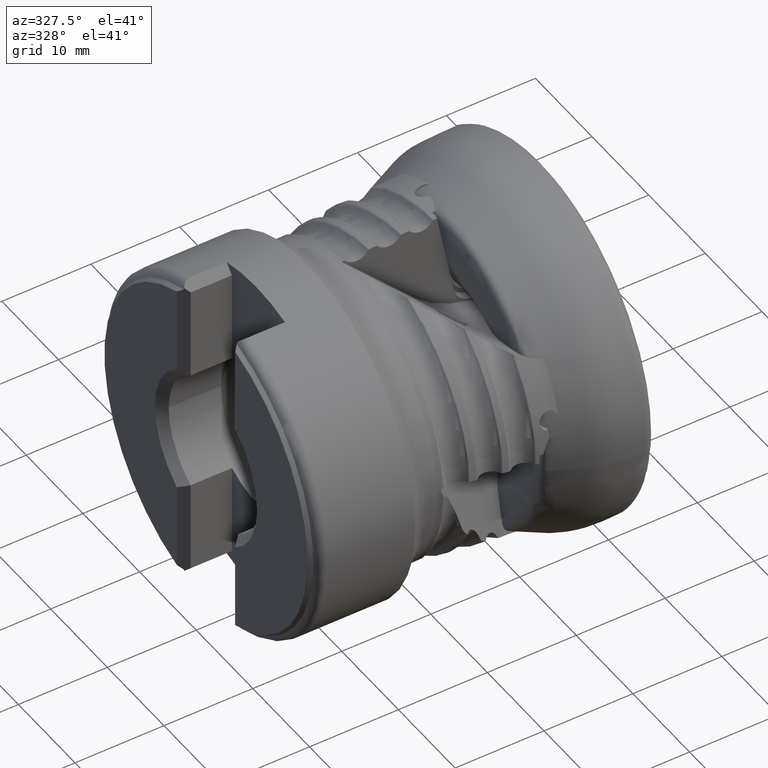
[diagram: clean part render]
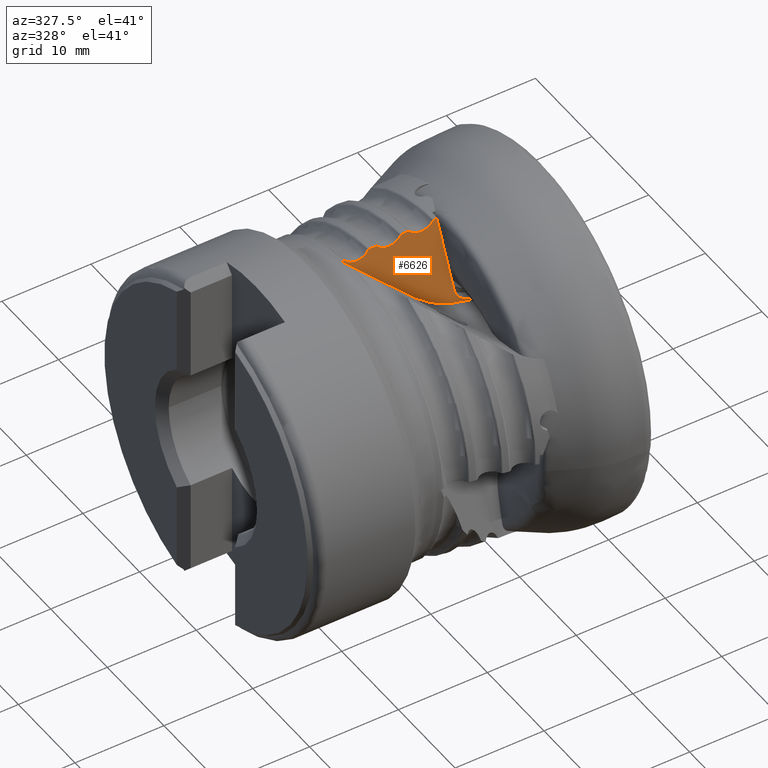
[diagram: same view with one face highlighted and labeled with its STEP entity id]
A machine part, auxiliary view. The second image highlights one B-rep face of the part: STEP entity #6626.
In plain terms, the highlighted planar face has unit normal (0.0698, 0.9976, 0).
Its self-contained STEP definition (entity closure, byte-faithful):
#18 = CARTESIAN_POINT ( 'NONE',  ( -22.93237804649524100, 0.9018787584175045300, 16.66945056114154500 ) ) ;
#32 = LINE ( 'NONE', #754, #6021 ) ;
#52 = VERTEX_POINT ( 'NONE', #9715 ) ;
#74 = CARTESIAN_POINT ( 'NONE',  ( -18.02193226408852300, 0.5585069396324143800, 16.48614713267451000 ) ) ;
#86 = LINE ( 'NONE', #3481, #2151 ) ;
#131 = CARTESIAN_POINT ( 'NONE',  ( -14.66626448247665200, 0.3238557897227878300, 16.88784947896225900 ) ) ;
#148 = CARTESIAN_POINT ( 'NONE',  ( -19.21049323735086700, 0.6416192192931060600, 17.01478553354292300 ) ) ;
#171 = CARTESIAN_POINT ( 'NONE',  ( -21.62066439760930000, 0.8101548047681437200, 16.08215080198396100 ) ) ;
#320 = DIRECTION ( 'NONE',  ( 0.9975640502598253100, -0.06975647374411164700, 0.0000000000000000000 ) ) ;
#423 = VERTEX_POINT ( 'NONE', #6162 ) ;
#436 = B_SPLINE_CURVE_WITH_KNOTS ( 'NONE', 3,
 ( #6314, #18, #4735, #7087 ),
 .UNSPECIFIED., .F., .F.,
 ( 4, 4 ),
 ( 2.018555436729897700E-007, 0.0002103721261003372400 ),
 .UNSPECIFIED. ) ;
#515 = DIRECTION ( 'NONE',  ( -0.1857083024379770900, 0.01298598954091932500, 0.9825191043848704500 ) ) ;
#614 = CARTESIAN_POINT ( 'NONE',  ( -11.67285360609061900, 0.1145361103001607300, 11.78192628055972300 ) ) ;
#754 = CARTESIAN_POINT ( 'NONE',  ( -14.46955968314606400, 0.3101008502115442100, 26.57834148646551500 ) ) ;
#857 = CARTESIAN_POINT ( 'NONE',  ( -17.65869335054573600, 0.5331068004345475000, 16.54335060354373300 ) ) ;
#888 = CARTESIAN_POINT ( 'NONE',  ( -22.68822593246434100, 0.8848059794540584800, 16.60915098782870600 ) ) ;
#907 = CARTESIAN_POINT ( 'NONE',  ( -14.30106816791181700, 0.2983187757117538600, 16.91464098894265400 ) ) ;
#936 = ORIENTED_EDGE ( 'NONE', *, *, #3014, .T. ) ;
#949 = CARTESIAN_POINT ( 'NONE',  ( -21.25529285941197000, 0.7846055379271124100, 16.11006186231635700 ) ) ;
#966 = LINE ( 'NONE', #5211, #6951 ) ;
#982 = CARTESIAN_POINT ( 'NONE',  ( -16.58359652930644400, 0.4579287071946904800, 17.40739725104578600 ) ) ;
#997 = CARTESIAN_POINT ( 'NONE',  ( -16.64893537373561100, 0.4624976442816942100, 17.39986879379563000 ) ) ;
#1023 = B_SPLINE_CURVE_WITH_KNOTS ( 'NONE', 3,
 ( #1597, #6288, #7869, #3173 ),
 .UNSPECIFIED., .F., .F.,
 ( 4, 4 ),
 ( 0.001804902456439107200, 0.002095584730264280600 ),
 .UNSPECIFIED. ) ;
#1097 = CARTESIAN_POINT ( 'NONE',  ( -20.21619411675994700, 0.7119446755589550200, 16.89789840284870700 ) ) ;
#1263 = B_SPLINE_CURVE_WITH_KNOTS ( 'NONE', 3,
 ( #8747, #4818, #7973, #3279 ),
 .UNSPECIFIED., .F., .F.,
 ( 4, 4 ),
 ( 2.018285900375869800E-007, 0.0006824885344810897900 ),
 .UNSPECIFIED. ) ;
#1285 = EDGE_CURVE ( 'NONE', #52, #3568, #966, .T. ) ;
#1387 = DIRECTION ( 'NONE',  ( -0.06975647374411164700, -0.9975640502598253100, -7.211950221047702700E-015 ) ) ;
#1544 = DIRECTION ( 'NONE',  ( 0.1857083024379774500, -0.01298598954091934700, -0.9825191043848704500 ) ) ;
#1597 = CARTESIAN_POINT ( 'NONE',  ( -12.81775168596530500, 0.1945951830259850500, 17.83919039467289400 ) ) ;
#1649 = CARTESIAN_POINT ( 'NONE',  ( -17.32041397203214600, 0.5094520019488635300, 16.68650127885360500 ) ) ;
#1697 = CARTESIAN_POINT ( 'NONE',  ( -13.95356570053498400, 0.2740190360255925200, 17.02866351302884600 ) ) ;
#1721 = CARTESIAN_POINT ( 'NONE',  ( -20.06132922441992200, 0.7011154673556432300, 17.00479521675551500 ) ) ;
#1725 = CARTESIAN_POINT ( 'NONE',  ( -19.31997241798640300, 0.6492747493691345400, 17.09094270997383800 ) ) ;
#1748 = CARTESIAN_POINT ( 'NONE',  ( -20.90806824766631800, 0.7603252277994194700, 16.22516396195757300 ) ) ;
#1764 = CARTESIAN_POINT ( 'NONE',  ( -22.73093576595474700, 0.8877925419486799600, 16.65917420842225400 ) ) ;
#1979 = EDGE_CURVE ( 'NONE', #3306, #8791, #10001, .T. ) ;
#2151 = VECTOR ( 'NONE', #6621, 1000.000000000000000 ) ;
#2207 = LINE ( 'NONE', #5302, #10120 ) ;
#2209 = CARTESIAN_POINT ( 'NONE',  ( -9.155259177039454200, -0.06151124189005347700, 6.086464551588067100 ) ) ;
#2219 = VERTEX_POINT ( 'NONE', #3602 ) ;
#2221 = LINE ( 'NONE', #2952, #8234 ) ;
#2347 = EDGE_CURVE ( 'NONE', #9523, #6978, #4532, .T. ) ;
#2425 = CARTESIAN_POINT ( 'NONE',  ( -16.85243464402838900, 0.4767276994860983300, 17.08155489725415400 ) ) ;
#2440 = CARTESIAN_POINT ( 'NONE',  ( -15.65263949394823200, 0.3928298496557220400, 17.32259661811399800 ) ) ;
#2479 = CARTESIAN_POINT ( 'NONE',  ( -13.54197089893089500, 0.2452375237369006600, 17.29301313499611200 ) ) ;
#2515 = CARTESIAN_POINT ( 'NONE',  ( -20.49704341607592900, 0.7315835716966887500, 16.49061774927226100 ) ) ;
#2528 = CARTESIAN_POINT ( 'NONE',  ( -16.58359652930644400, 0.4579287071946904800, 17.40739725104578600 ) ) ;
#2569 = CARTESIAN_POINT ( 'NONE',  ( -16.73846142164647300, 0.4687579153980022700, 17.30071710437252000 ) ) ;
#2570 = EDGE_CURVE ( 'NONE', #5220, #8033, #436, .T. ) ;
#2758 = CARTESIAN_POINT ( 'NONE',  ( -15.73276054223739500, 0.3984324591321535800, 17.41649872880522300 ) ) ;
#2918 = CARTESIAN_POINT ( 'NONE',  ( -13.23032516703002100, 0.2234451312492715700, 17.75822243192281000 ) ) ;
#2952 = CARTESIAN_POINT ( 'NONE',  ( -9.155259177039454200, -0.06151124189000996300, -4.742926913714724100E-014 ) ) ;
#2974 = EDGE_CURVE ( 'NONE', #7510, #423, #6920, .T. ) ;
#2983 = ORIENTED_EDGE ( 'NONE', *, *, #5364, .T. ) ;
#3014 = EDGE_CURVE ( 'NONE', #5539, #6646, #3307, .T. ) ;
#3105 = VERTEX_POINT ( 'NONE', #8857 ) ;
#3173 = CARTESIAN_POINT ( 'NONE',  ( -13.10586383419297500, 0.2147419470337380800, 17.80630137759338200 ) ) ;
#3191 = CARTESIAN_POINT ( 'NONE',  ( -18.84172679504961000, 0.6158325576312356800, 16.69715891243101100 ) ) ;
#3239 = CARTESIAN_POINT ( 'NONE',  ( -15.56276373482772400, 0.3865451243494240600, 17.24043365181301000 ) ) ;
#3272 = CARTESIAN_POINT ( 'NONE',  ( -13.26072872653300100, 0.2255711552370497100, 17.69980579611261000 ) ) ;
#3279 = CARTESIAN_POINT ( 'NONE',  ( -20.06132922441992200, 0.7011154673556432300, 17.00479521675551500 ) ) ;
#3282 = CARTESIAN_POINT ( 'NONE',  ( -22.51808038382776900, 0.8729082436715275300, 16.43310511388428800 ) ) ;
#3294 = VERTEX_POINT ( 'NONE', #5093 ) ;
#3306 = VERTEX_POINT ( 'NONE', #9839 ) ;
#3307 = B_SPLINE_CURVE_WITH_KNOTS ( 'NONE', 3,
 ( #1721, #7152, #4825, #7187 ),
 .UNSPECIFIED., .F., .F.,
 ( 4, 4 ),
 ( 1.989714420414164500E-007, 0.0001953270459447195100 ),
 .UNSPECIFIED. ) ;
#3318 = CARTESIAN_POINT ( 'NONE',  ( -20.21619411675994700, 0.7119446755589550200, 16.89789840284870700 ) ) ;
#3340 = ORIENTED_EDGE ( 'NONE', *, *, #7273, .F. ) ;
#3424 = DIRECTION ( 'NONE',  ( 0.06975647374411164700, 0.9975640502598252000, 7.210798256239435200E-015 ) ) ;
#3481 = CARTESIAN_POINT ( 'NONE',  ( -15.30473973912517700, 0.3685023289250824500, 8.943021912864589100 ) ) ;
#3493 = ORIENTED_EDGE ( 'NONE', *, *, #5964, .F. ) ;
#3548 = CARTESIAN_POINT ( 'NONE',  ( -15.77546968749421700, 0.4014189735007945300, 17.46655397609754300 ) ) ;
#3568 = VERTEX_POINT ( 'NONE', #7124 ) ;
#3597 = EDGE_CURVE ( 'NONE', #7510, #10212, #5296, .T. ) ;
#3602 = CARTESIAN_POINT ( 'NONE',  ( -9.155259177039454200, -0.06151124189005532200, 6.300962962190353300 ) ) ;
#3699 = CARTESIAN_POINT ( 'NONE',  ( -13.10586383419297500, 0.2147419470337380800, 17.80630137759338200 ) ) ;
#3785 = CARTESIAN_POINT ( 'NONE',  ( -11.90097131837936800, 0.1304876546683540200, 12.51473716040056600 ) ) ;
#3799 = ORIENTED_EDGE ( 'NONE', *, *, #8457, .F. ) ;
#3835 = ORIENTED_EDGE ( 'NONE', *, *, #4311, .F. ) ;
#3838 = CARTESIAN_POINT ( 'NONE',  ( -13.10586383419297500, 0.2147419470337380800, 17.80630137759338200 ) ) ;
#3873 = DIRECTION ( 'NONE',  ( -0.06975647374411164700, -0.9975640502598252000, -7.210798256239436800E-015 ) ) ;
#3913 = B_SPLINE_CURVE_WITH_KNOTS ( 'NONE', 3,
 ( #7204, #1764, #8865, #4165 ),
 .UNSPECIFIED., .F., .F.,
 ( 4, 4 ),
 ( 3.042607488179706800E-007, 0.0001950772398433506300 ),
 .UNSPECIFIED. ) ;
#3948 = CARTESIAN_POINT ( 'NONE',  ( -19.21049323735086700, 0.6416192192931060600, 17.01478553354292300 ) ) ;
#3984 = CARTESIAN_POINT ( 'NONE',  ( -18.50587967924333600, 0.5923478395224861500, 16.54919504039738200 ) ) ;
#4035 = CARTESIAN_POINT ( 'NONE',  ( -15.25482400604464000, 0.3650118808448789600, 17.03946652622331500 ) ) ;
#4079 = CARTESIAN_POINT ( 'NONE',  ( -22.20976862421985800, 0.8513489852374582800, 16.23244539084077000 ) ) ;
#4133 = EDGE_CURVE ( 'NONE', #7301, #9367, #6333, .T. ) ;
#4165 = CARTESIAN_POINT ( 'NONE',  ( -22.86296528221823400, 0.8970249451034273400, 16.67759045399673600 ) ) ;
#4200 = EDGE_CURVE ( 'NONE', #9367, #8033, #86, .T. ) ;
#4211 = ORIENTED_EDGE ( 'NONE', *, *, #4200, .F. ) ;
#4311 = EDGE_CURVE ( 'NONE', #52, #2219, #5835, .T. ) ;
#4336 = CARTESIAN_POINT ( 'NONE',  ( -15.90749989199128800, 0.4106514247815223900, 17.48522877374682900 ) ) ;
#4520 = DIRECTION ( 'NONE',  ( 1.032266439778977500E-046, 7.228406290665059600E-015, -1.000000000000000000 ) ) ;
#4532 = B_SPLINE_CURVE_WITH_KNOTS ( 'NONE', 3,
 ( #3699, #8402, #2918, #9234 ),
 .UNSPECIFIED., .F., .F.,
 ( 4, 4 ),
 ( 1.989287333832135700E-007, 0.0001951198378473017600 ),
 .UNSPECIFIED. ) ;
#4549 = CARTESIAN_POINT ( 'NONE',  ( -16.13286804543864900, 0.4264107012656890800, 17.45930770574968000 ) ) ;
#4553 = ORIENTED_EDGE ( 'NONE', *, *, #6282, .F. ) ;
#4698 = VERTEX_POINT ( 'NONE', #888 ) ;
#4726 = CARTESIAN_POINT ( 'NONE',  ( -19.13033950177716800, 0.6360143240990753200, 16.92088601306469900 ) ) ;
#4735 = CARTESIAN_POINT ( 'NONE',  ( -23.00179052172277100, 0.9067325515192722300, 16.66130819098495400 ) ) ;
#4768 = CARTESIAN_POINT ( 'NONE',  ( -18.14348197565982800, 0.5670065234552473800, 16.48700324045896400 ) ) ;
#4800 = ORIENTED_EDGE ( 'NONE', *, *, #7385, .F. ) ;
#4812 = CARTESIAN_POINT ( 'NONE',  ( -14.90869841233943300, 0.3408084215450250500, 16.91952960267653700 ) ) ;
#4818 = CARTESIAN_POINT ( 'NONE',  ( -19.61060095513718700, 0.6695974764318913800, 17.05720005549718000 ) ) ;
#4825 = CARTESIAN_POINT ( 'NONE',  ( -20.18580329450161100, 0.7098195422460873400, 16.95640005489455900 ) ) ;
#4827 = CARTESIAN_POINT ( 'NONE',  ( -19.25320462228147600, 0.6446058902749946000, 17.06482161152778700 ) ) ;
#4846 = CARTESIAN_POINT ( 'NONE',  ( -21.86321535402776900, 0.8271156198843325800, 16.11318504069943800 ) ) ;
#4870 = CARTESIAN_POINT ( 'NONE',  ( -20.06132922441992200, 0.7011154673556432300, 17.00479521675551500 ) ) ;
#5021 = DIRECTION ( 'NONE',  ( 0.06975647374411164700, 0.9975640502598252000, 7.210798256239436800E-015 ) ) ;
#5093 = CARTESIAN_POINT ( 'NONE',  ( -15.73276054223739500, 0.3984324591321535800, 17.41649872880522300 ) ) ;
#5112 = VERTEX_POINT ( 'NONE', #9930 ) ;
#5208 = AXIS2_PLACEMENT_3D ( 'NONE', #9764, #5021, #320 ) ;
#5211 = CARTESIAN_POINT ( 'NONE',  ( -12.29734064889807900, 0.1582044983036831600, 15.28631844419071100 ) ) ;
#5220 = VERTEX_POINT ( 'NONE', #7649 ) ;
#5296 = B_SPLINE_CURVE_WITH_KNOTS ( 'NONE', 3,
 ( #9581, #4827, #1725, #7189 ),
 .UNSPECIFIED., .F., .F.,
 ( 4, 4 ),
 ( 3.042980206162531100E-007, 0.0001951083539708092500 ),
 .UNSPECIFIED. ) ;
#5302 = CARTESIAN_POINT ( 'NONE',  ( -14.46955968314606400, 0.3101008502115442100, 26.57834148646551500 ) ) ;
#5364 = EDGE_CURVE ( 'NONE', #5112, #9523, #1023, .T. ) ;
#5474 = B_SPLINE_CURVE_WITH_KNOTS ( 'NONE', 3,
 ( #7692, #6884, #3785, #9312 ),
 .UNSPECIFIED., .F., .F.,
 ( 4, 4 ),
 ( 0.004431285377793949900, 0.006682763128315547000 ),
 .UNSPECIFIED. ) ;
#5539 = VERTEX_POINT ( 'NONE', #4870 ) ;
#5564 = CARTESIAN_POINT ( 'NONE',  ( -17.77821269031506500, 0.5414644068302086900, 16.51433384028387900 ) ) ;
#5582 = CARTESIAN_POINT ( 'NONE',  ( -23.07120270636859200, 0.9115863243015880400, 16.65316333270321900 ) ) ;
#5592 = EDGE_CURVE ( 'NONE', #4698, #5220, #3913, .T. ) ;
#5607 = CARTESIAN_POINT ( 'NONE',  ( -14.54473945493109500, 0.3153579319751811900, 16.88682264496037500 ) ) ;
#5617 = CARTESIAN_POINT ( 'NONE',  ( -22.68822593246434100, 0.8848059794540584800, 16.60915098782870600 ) ) ;
#5651 = CARTESIAN_POINT ( 'NONE',  ( -21.49908096638373000, 0.8016528630373879200, 16.08147471128157600 ) ) ;
#5674 = B_SPLINE_CURVE_WITH_KNOTS ( 'NONE', 3,
 ( #7931, #2440, #3239, #8740, #4035, #9558, #4812, #131, #5607, #907, #6389, #1697, #7167, #2479, #7966, #3272 ),
 .UNSPECIFIED., .F., .F.,
 ( 4, 2, 2, 2, 2, 2, 2, 4 ),
 ( 3.040996882458810700E-007, 0.0003657382935175798200, 0.0007311724873469136800, 0.001096606681176247800, 0.001462040875005581600, 0.001827475068834915500, 0.002192909262664249600, 0.002923777650322921200 ),
 .UNSPECIFIED. ) ;
#5835 = CIRCLE ( 'NONE', #9468, 2.000000000000001800 ) ;
#5900 = FACE_OUTER_BOUND ( 'NONE', #9739, .T. ) ;
#5964 = EDGE_CURVE ( 'NONE', #5112, #9887, #32, .T. ) ;
#6015 = ORIENTED_EDGE ( 'NONE', *, *, #7089, .T. ) ;
#6021 = VECTOR ( 'NONE', #1544, 1000.000000000000100 ) ;
#6073 = CARTESIAN_POINT ( 'NONE',  ( -8.944276906157597300, -0.07626455946943717900, 8.289748727674897600 ) ) ;
#6076 = DIRECTION ( 'NONE',  ( 0.1857083024379774500, -0.01298598954091934700, -0.9825191043848704500 ) ) ;
#6125 = CARTESIAN_POINT ( 'NONE',  ( -15.90749989199128800, 0.4106514247815223900, 17.48522877374682900 ) ) ;
#6162 = CARTESIAN_POINT ( 'NONE',  ( -16.73846142164647300, 0.4687579153980022700, 17.30071710437252000 ) ) ;
#6282 = EDGE_CURVE ( 'NONE', #2219, #7301, #2221, .T. ) ;
#6288 = CARTESIAN_POINT ( 'NONE',  ( -12.91378950993276600, 0.2013108018820200500, 17.82823127376541100 ) ) ;
#6314 = CARTESIAN_POINT ( 'NONE',  ( -22.86296528221823400, 0.8970249451034273400, 16.67759045399673600 ) ) ;
#6333 = CIRCLE ( 'NONE', #5208, 9.999999999999911200 ) ;
#6341 = CARTESIAN_POINT ( 'NONE',  ( -17.43085020142401800, 0.5171744553932983200, 16.62886264828937800 ) ) ;
#6368 = CARTESIAN_POINT ( 'NONE',  ( -13.26072872653300100, 0.2255711552370497100, 17.69980579611261000 ) ) ;
#6389 = CARTESIAN_POINT ( 'NONE',  ( -14.18147087585449400, 0.2899557183611103900, 16.94348758723257800 ) ) ;
#6396 = ORIENTED_EDGE ( 'NONE', *, *, #7563, .T. ) ;
#6400 = CARTESIAN_POINT ( 'NONE',  ( -22.60804384319510200, 0.8791991015764925000, 16.51523897714227800 ) ) ;
#6428 = CARTESIAN_POINT ( 'NONE',  ( -21.13585434539892900, 0.7762535834189119300, 16.13926788031873400 ) ) ;
#6619 = ORIENTED_EDGE ( 'NONE', *, *, #8680, .T. ) ;
#6621 = DIRECTION ( 'NONE',  ( -0.7088031045876379600, 0.04956434139946127400, 0.7036629413210303600 ) ) ;
#6626 = ADVANCED_FACE ( 'NONE', ( #5900 ), #8117, .F. ) ;
#6646 = VERTEX_POINT ( 'NONE', #1097 ) ;
#6828 = ORIENTED_EDGE ( 'NONE', *, *, #1979, .T. ) ;
#6851 = DIRECTION ( 'NONE',  ( 0.9975640502598252000, -0.06975647374411161900, 0.0000000000000000000 ) ) ;
#6884 = CARTESIAN_POINT ( 'NONE',  ( -12.04160041401187300, 0.1403213989924253500, 13.26247150831478500 ) ) ;
#6894 = CARTESIAN_POINT ( 'NONE',  ( -16.58359652930644400, 0.4579287071946904800, 17.40739725104578600 ) ) ;
#6920 = B_SPLINE_CURVE_WITH_KNOTS ( 'NONE', 3,
 ( #3948, #4726, #7890, #3191, #8688, #3984, #9510, #4768, #74, #5564, #857, #6341, #1649, #7120, #2425, #7915 ),
 .UNSPECIFIED., .F., .F.,
 ( 4, 2, 2, 2, 2, 2, 2, 4 ),
 ( 3.040236944974078100E-007, 0.0003657959286676820600, 0.0007312878336408667900, 0.001096779738614051400, 0.001462271643587236000, 0.001827763548560420700, 0.002193255453533605500, 0.002924239263479977300 ),
 .UNSPECIFIED. ) ;
#6951 = VECTOR ( 'NONE', #515, 999.9999999999998900 ) ;
#6974 = ORIENTED_EDGE ( 'NONE', *, *, #2974, .F. ) ;
#6978 = VERTEX_POINT ( 'NONE', #6368 ) ;
#6983 = AXIS2_PLACEMENT_3D ( 'NONE', #7289, #3424, #8925 ) ;
#7087 = CARTESIAN_POINT ( 'NONE',  ( -23.07120270636859200, 0.9115863243015880400, 16.65316333270321900 ) ) ;
#7089 = EDGE_CURVE ( 'NONE', #3294, #3306, #8050, .T. ) ;
#7120 = CARTESIAN_POINT ( 'NONE',  ( -17.01952718831720200, 0.4884119484077438200, 16.89371553787325900 ) ) ;
#7124 = CARTESIAN_POINT ( 'NONE',  ( -10.91686812814431400, 0.06167245595182299600, 7.982710544528258000 ) ) ;
#7152 = CARTESIAN_POINT ( 'NONE',  ( -20.12669877801117500, 0.7056865518364492400, 16.99719127105709400 ) ) ;
#7167 = CARTESIAN_POINT ( 'NONE',  ( -13.84306955447201100, 0.2662923927993652300, 17.08614913211205200 ) ) ;
#7187 = CARTESIAN_POINT ( 'NONE',  ( -20.21619411675994700, 0.7119446755589550200, 16.89789840284870700 ) ) ;
#7189 = CARTESIAN_POINT ( 'NONE',  ( -19.38523258710476300, 0.6538381849424749200, 17.08336585131080900 ) ) ;
#7204 = CARTESIAN_POINT ( 'NONE',  ( -22.68822593246434100, 0.8848059794540584800, 16.60915098782870600 ) ) ;
#7215 = CARTESIAN_POINT ( 'NONE',  ( -20.79769682854097100, 0.7526073063303038200, 16.28298118219596100 ) ) ;
#7258 = CARTESIAN_POINT ( 'NONE',  ( -16.70806262496197200, 0.4666322244589359800, 17.35917177675857900 ) ) ;
#7273 = EDGE_CURVE ( 'NONE', #9876, #3105, #2207, .T. ) ;
#7289 = CARTESIAN_POINT ( 'NONE',  ( -8.285251201505774400, -0.1223481259846114100, 16.04836120815099700 ) ) ;
#7301 = VERTEX_POINT ( 'NONE', #2209 ) ;
#7316 = EDGE_CURVE ( 'NONE', #9887, #9876, #5474, .T. ) ;
#7323 = ORIENTED_EDGE ( 'NONE', *, *, #4133, .F. ) ;
#7385 = EDGE_CURVE ( 'NONE', #3105, #3568, #7730, .T. ) ;
#7510 = VERTEX_POINT ( 'NONE', #148 ) ;
#7563 = EDGE_CURVE ( 'NONE', #8791, #423, #7606, .T. ) ;
#7606 = B_SPLINE_CURVE_WITH_KNOTS ( 'NONE', 3,
 ( #2528, #997, #7258, #2569 ),
 .UNSPECIFIED., .F., .F.,
 ( 4, 4 ),
 ( 1.989493762972014500E-007, 0.0001952136054044148200 ),
 .UNSPECIFIED. ) ;
#7649 = CARTESIAN_POINT ( 'NONE',  ( -22.86296528221823400, 0.8970249451034273400, 16.67759045399673600 ) ) ;
#7668 = CARTESIAN_POINT ( 'NONE',  ( -12.09678104003449500, 0.1441800042512270700, 14.02478132395134300 ) ) ;
#7692 = CARTESIAN_POINT ( 'NONE',  ( -12.09678104003449500, 0.1441800042512270700, 14.02478132395134300 ) ) ;
#7730 = CIRCLE ( 'NONE', #9797, 2.537315167658678500 ) ;
#7869 = CARTESIAN_POINT ( 'NONE',  ( -13.00982689364302700, 0.2080263899522730200, 17.81726827519391100 ) ) ;
#7890 = CARTESIAN_POINT ( 'NONE',  ( -19.04041851330593700, 0.6297264360484751100, 16.83874566765694800 ) ) ;
#7915 = CARTESIAN_POINT ( 'NONE',  ( -16.73846142164647300, 0.4687579153980022700, 17.30071710437252000 ) ) ;
#7929 = ORIENTED_EDGE ( 'NONE', *, *, #5592, .T. ) ;
#7931 = CARTESIAN_POINT ( 'NONE',  ( -15.73276054223739500, 0.3984324591321535800, 17.41649872880522300 ) ) ;
#7952 = ORIENTED_EDGE ( 'NONE', *, *, #2347, .T. ) ;
#7966 = CARTESIAN_POINT ( 'NONE',  ( -13.37475973676069300, 0.2335449802449698900, 17.48070947632520600 ) ) ;
#7973 = CARTESIAN_POINT ( 'NONE',  ( -19.83596651652837300, 0.6853565716618335000, 17.03100995586743600 ) ) ;
#8011 = CARTESIAN_POINT ( 'NONE',  ( -20.33009416084710000, 0.7199093425221941800, 16.67864336951824800 ) ) ;
#8033 = VERTEX_POINT ( 'NONE', #5582 ) ;
#8050 = B_SPLINE_CURVE_WITH_KNOTS ( 'NONE', 3,
 ( #2758, #3548, #9065, #4336 ),
 .UNSPECIFIED., .F., .F.,
 ( 4, 4 ),
 ( 3.043740731765205800E-007, 0.0001951469365947910500 ),
 .UNSPECIFIED. ) ;
#8076 = EDGE_CURVE ( 'NONE', #4698, #6646, #9016, .T. ) ;
#8117 = PLANE ( 'NONE',  #6983 ) ;
#8234 = VECTOR ( 'NONE', #4520, 1000.000000000000000 ) ;
#8296 = ORIENTED_EDGE ( 'NONE', *, *, #8076, .F. ) ;
#8402 = CARTESIAN_POINT ( 'NONE',  ( -13.17117808238736400, 0.2193091641844580300, 17.79884284478609000 ) ) ;
#8417 = ORIENTED_EDGE ( 'NONE', *, *, #7316, .F. ) ;
#8457 = EDGE_CURVE ( 'NONE', #3294, #6978, #5674, .T. ) ;
#8500 = CARTESIAN_POINT ( 'NONE',  ( -19.38523258710476300, 0.6538381849424749200, 17.08336585131080900 ) ) ;
#8588 = CARTESIAN_POINT ( 'NONE',  ( -8.547068188762667200, -0.1040400987530336500, 8.874089171460001400 ) ) ;
#8680 = EDGE_CURVE ( 'NONE', #10212, #5539, #1263, .T. ) ;
#8688 = CARTESIAN_POINT ( 'NONE',  ( -18.73229497554892100, 0.6081803393683773400, 16.63795324559119500 ) ) ;
#8740 = CARTESIAN_POINT ( 'NONE',  ( -15.36419404613209500, 0.3726597790703271000, 17.09875413323049300 ) ) ;
#8747 = CARTESIAN_POINT ( 'NONE',  ( -19.38523258710476300, 0.6538381849424749200, 17.08336585131080900 ) ) ;
#8778 = CARTESIAN_POINT ( 'NONE',  ( -22.31926516582968400, 0.8590057293110714400, 16.29158156033857500 ) ) ;
#8791 = VERTEX_POINT ( 'NONE', #982 ) ;
#8857 = CARTESIAN_POINT ( 'NONE',  ( -11.03395608804347600, 0.06986004370453710600, 8.401738055345411700 ) ) ;
#8865 = CARTESIAN_POINT ( 'NONE',  ( -22.79772492567900200, 0.8924628949605818400, 16.68524105718587000 ) ) ;
#8925 = DIRECTION ( 'NONE',  ( 0.9975640502598252000, -0.06975647374411164700, 0.0000000000000000000 ) ) ;
#9016 = B_SPLINE_CURVE_WITH_KNOTS ( 'NONE', 3,
 ( #5617, #6400, #3282, #8778, #4079, #9603, #4846, #171, #5651, #949, #6428, #1748, #7215, #2515, #8011, #3318 ),
 .UNSPECIFIED., .F., .F.,
 ( 4, 2, 2, 2, 2, 2, 2, 4 ),
 ( 3.039863656198362700E-007, 0.0003658802608646776400, 0.0007314565353637354500, 0.001097032809862793500, 0.001462609084361851200, 0.001828185358860909100, 0.002193761633359967100, 0.002924914182358074200 ),
 .UNSPECIFIED. ) ;
#9065 = CARTESIAN_POINT ( 'NONE',  ( -15.84221807222495400, 0.4060864752473926600, 17.49273726363284000 ) ) ;
#9098 = ORIENTED_EDGE ( 'NONE', *, *, #3597, .T. ) ;
#9234 = CARTESIAN_POINT ( 'NONE',  ( -13.26072872653300100, 0.2255711552370497100, 17.69980579611261000 ) ) ;
#9289 = CARTESIAN_POINT ( 'NONE',  ( -16.35823360511421100, 0.4421697963756635600, 17.43336396587482900 ) ) ;
#9312 = CARTESIAN_POINT ( 'NONE',  ( -11.67285360609061900, 0.1145361103001607300, 11.78192628055972300 ) ) ;
#9367 = VERTEX_POINT ( 'NONE', #9915 ) ;
#9405 = DIRECTION ( 'NONE',  ( 0.9975640502598253100, -0.06975647374411166100, 0.0000000000000000000 ) ) ;
#9468 = AXIS2_PLACEMENT_3D ( 'NONE', #6073, #1387, #6851 ) ;
#9510 = CARTESIAN_POINT ( 'NONE',  ( -18.38596644181022900, 0.5839626891189652100, 16.51836398165004400 ) ) ;
#9523 = VERTEX_POINT ( 'NONE', #3838 ) ;
#9558 = CARTESIAN_POINT ( 'NONE',  ( -15.02853081065291400, 0.3491879191266297200, 16.95049442065980100 ) ) ;
#9581 = CARTESIAN_POINT ( 'NONE',  ( -19.21049323735086700, 0.6416192192931060600, 17.01478553354292300 ) ) ;
#9603 = CARTESIAN_POINT ( 'NONE',  ( -21.98321970420073900, 0.8355071415112790300, 16.14388558668466400 ) ) ;
#9715 = CARTESIAN_POINT ( 'NONE',  ( -10.90452838061325000, 0.06080957674678812200, 7.917425161304182200 ) ) ;
#9739 = EDGE_LOOP ( 'NONE', ( #8417, #3493, #2983, #7952, #3799, #6015, #6828, #6396, #6974, #9098, #6619, #936, #8296, #7929, #10094, #4211, #7323, #4553, #3835, #10218, #4800, #3340 ) ) ;
#9764 = CARTESIAN_POINT ( 'NONE',  ( -8.285251201505774400, -0.1223481259846114100, 16.04836120815099700 ) ) ;
#9797 = AXIS2_PLACEMENT_3D ( 'NONE', #8588, #3873, #9405 ) ;
#9839 = CARTESIAN_POINT ( 'NONE',  ( -15.90749989199128800, 0.4106514247815223900, 17.48522877374682900 ) ) ;
#9876 = VERTEX_POINT ( 'NONE', #614 ) ;
#9887 = VERTEX_POINT ( 'NONE', #7668 ) ;
#9915 = CARTESIAN_POINT ( 'NONE',  ( -15.30473973912524100, 0.3685023289250867800, 8.943021912864523400 ) ) ;
#9930 = CARTESIAN_POINT ( 'NONE',  ( -12.81775168596530500, 0.1945951830259850500, 17.83919039467289400 ) ) ;
#10001 = B_SPLINE_CURVE_WITH_KNOTS ( 'NONE', 3,
 ( #6125, #4549, #9289, #6894 ),
 .UNSPECIFIED., .F., .F.,
 ( 4, 4 ),
 ( 2.018037213747384100E-007, 0.0006824037901940043500 ),
 .UNSPECIFIED. ) ;
#10094 = ORIENTED_EDGE ( 'NONE', *, *, #2570, .T. ) ;
#10120 = VECTOR ( 'NONE', #6076, 1000.000000000000100 ) ;
#10212 = VERTEX_POINT ( 'NONE', #8500 ) ;
#10218 = ORIENTED_EDGE ( 'NONE', *, *, #1285, .T. ) ;